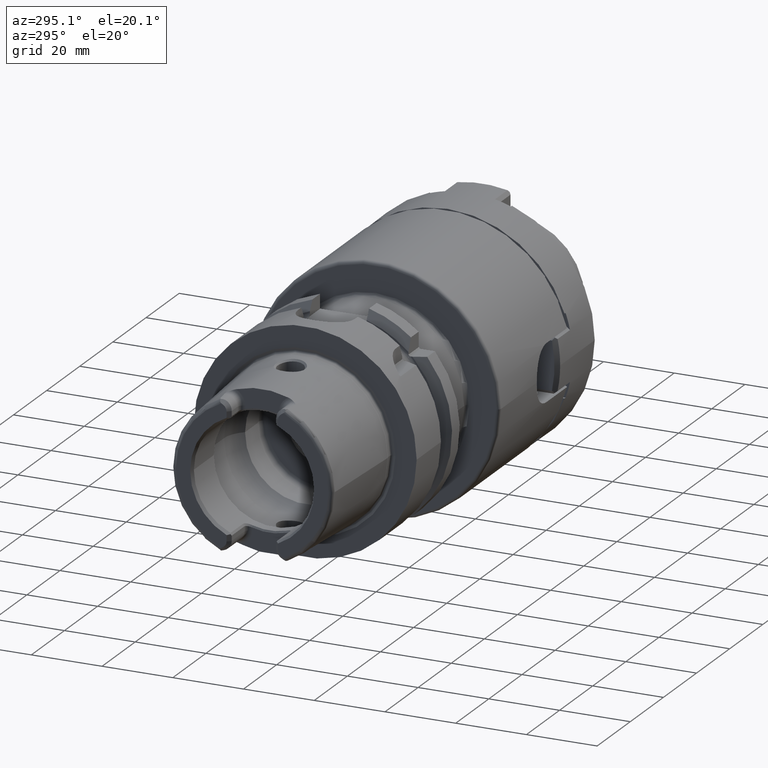
[diagram: clean part render]
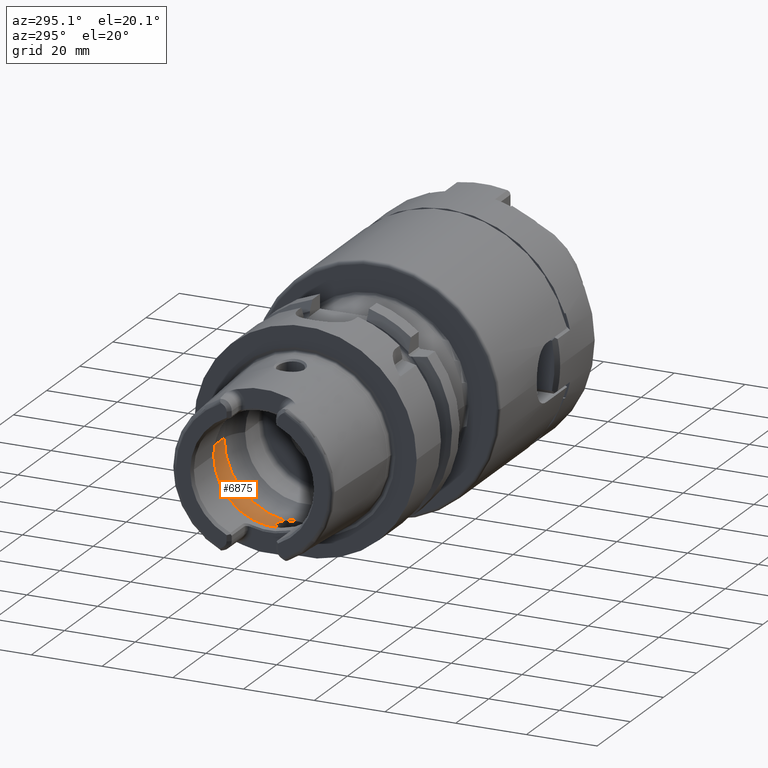
[diagram: same view with one face highlighted and labeled with its STEP entity id]
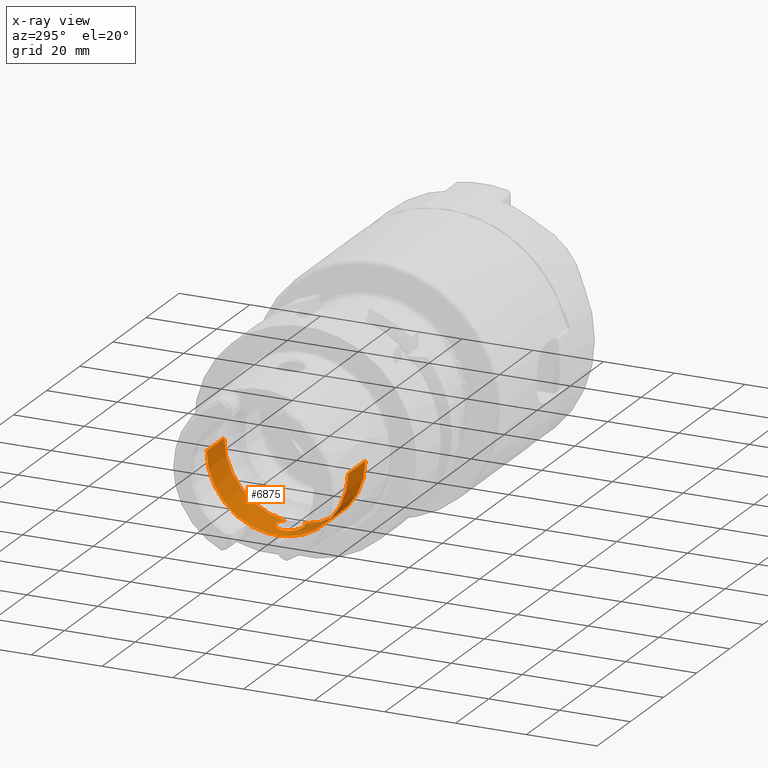
[diagram: x-ray of the same camera — body ghosted, the highlighted face saturated]
A machine part, auxiliary view. The second image highlights one B-rep face of the part: STEP entity #6875.
The next image is the same camera in x-ray: the body ghosted, the highlighted face saturated — about 5% of this face is hidden behind the body in this view.
In plain terms, the highlighted cylindrical surface (partial cylindrical patch) has radius 20 mm, axis along (1, 0, 0).
Its self-contained STEP definition (entity closure, byte-faithful):
#2754=CARTESIAN_POINT('',(-1.275E1,0.E0,-2.E1));
#2755=CARTESIAN_POINT('',(-1.275E1,1.970797777845E-1,-2.E1));
#2756=CARTESIAN_POINT('',(-1.271933909344E1,5.855820587090E-1,
-1.999421722836E1));
#2757=CARTESIAN_POINT('',(-1.258308604776E1,1.156988201512E0,
-1.996912456378E1));
#2758=CARTESIAN_POINT('',(-1.236036877994E1,1.698340885752E0,
-1.993006069771E1));
#2759=CARTESIAN_POINT('',(-1.205588954782E1,2.199795991820E0,
-1.988058916012E1));
#2760=CARTESIAN_POINT('',(-1.167538777807E1,2.649620270025E0,
-1.982521080355E1));
#2761=CARTESIAN_POINT('',(-1.122923157921E1,3.034483606922E0,
-1.976949737947E1));
#2762=CARTESIAN_POINT('',(-1.073042246945E1,3.344039011522E0,
-1.971907966661E1));
#2763=CARTESIAN_POINT('',(-1.018735452757E1,3.573605383178E0,
-1.967844161215E1));
#2764=CARTESIAN_POINT('',(-9.606410769133E0,3.716516435875E0,
-1.965172086194E1));
#2765=CARTESIAN_POINT('',(-9.030535729406E0,3.763361658231E0,
-1.964272645946E1));
#2766=CARTESIAN_POINT('',(-8.506781906634E0,3.728806167728E0,
-1.964936056965E1));
#2767=CARTESIAN_POINT('',(-8.021198772650E0,3.630984566241E0,
-1.966777436361E1));
#2768=CARTESIAN_POINT('',(-7.558768926129E0,3.473542575992E0,
-1.969635625599E1));
#2769=CARTESIAN_POINT('',(-7.115695543339E0,3.254813817759E0,
-1.973391032126E1));
#2770=CARTESIAN_POINT('',(-6.705028812647E0,2.979233365007E0,
-1.977763044789E1));
#2771=CARTESIAN_POINT('',(-6.460595531496E0,2.764184924848E0,
-1.980840609324E1));
#2772=CARTESIAN_POINT('',(-6.344997998398E0,2.648294615690E0,
-1.982388800484E1));
#2774=CARTESIAN_POINT('',(-6.344997998398E0,-2.648294615690E0,
-1.982388800484E1));
#2775=CARTESIAN_POINT('',(-6.462044697935E0,-2.765637761618E0,
-1.980821200720E1));
#2776=CARTESIAN_POINT('',(-6.709671551165E0,-2.983133891878E0,
-1.977705807675E1));
#2777=CARTESIAN_POINT('',(-7.126034905943E0,-3.261089757929E0,
-1.973288133904E1));
#2778=CARTESIAN_POINT('',(-7.575584049692E0,-3.480770468375E0,
-1.969508061270E1));
#2779=CARTESIAN_POINT('',(-8.044905845670E0,-3.637571668188E0,
-1.966655338525E1));
#2780=CARTESIAN_POINT('',(-8.536725270309E0,-3.732857206466E0,
-1.964858692526E1));
#2781=CARTESIAN_POINT('',(-9.064387630539E0,-3.763073563083E0,
-1.964278192788E1));
#2782=CARTESIAN_POINT('',(-9.641487703756E0,-3.710628371547E0,
-1.965284319508E1));
#2783=CARTESIAN_POINT('',(-1.021950864124E1,-3.562603616823E0,
-1.968045141989E1));
#2784=CARTESIAN_POINT('',(-1.075710456701E1,-3.329816746764E0,
-1.972149542356E1));
#2785=CARTESIAN_POINT('',(-1.124928271618E1,-3.019350214938E0,
-1.977181687259E1));
#2786=CARTESIAN_POINT('',(-1.169009647422E1,-2.634399272321E0,
-1.982723525020E1));
#2787=CARTESIAN_POINT('',(-1.206569000544E1,-2.185760381770E0,
-1.988212354227E1));
#2788=CARTESIAN_POINT('',(-1.236610944677E1,-1.686459337541E0,
-1.993104484011E1));
#2789=CARTESIAN_POINT('',(-1.258557429564E1,-1.148507897483E0,
-1.996957873946E1));
#2790=CARTESIAN_POINT('',(-1.271982075329E1,-5.810738531371E-1,
-1.999430846292E1));
#2791=CARTESIAN_POINT('',(-1.275E1,-1.955235226658E-1,-2.E1));
#2792=CARTESIAN_POINT('',(-1.275E1,0.E0,-2.E1));
#2794=CARTESIAN_POINT('',(-6.344997998398E0,0.E0,0.E0));
#2795=DIRECTION('',(-1.E0,0.E0,0.E0));
#2796=DIRECTION('',(0.E0,-1.324147307845E-1,-9.911944002421E-1));
#2797=AXIS2_PLACEMENT_3D('',#2794,#2795,#2796);
#2799=DIRECTION('',(-1.E0,0.E0,0.E0));
#2800=VECTOR('',#2799,1.057256643630E1);
#2801=CARTESIAN_POINT('',(-6.344997998398E0,-2.E1,0.E0));
#2802=LINE('',#2801,#2800);
#2803=DIRECTION('',(-1.E0,0.E0,0.E0));
#2804=VECTOR('',#2803,1.057256643630E1);
#2805=CARTESIAN_POINT('',(-6.344997998398E0,2.E1,0.E0));
#2806=LINE('',#2805,#2804);
#2807=CARTESIAN_POINT('',(-6.344997998398E0,0.E0,0.E0));
#2808=DIRECTION('',(-1.E0,0.E0,0.E0));
#2809=DIRECTION('',(0.E0,1.E0,0.E0));
#2810=AXIS2_PLACEMENT_3D('',#2807,#2808,#2809);
#2812=CARTESIAN_POINT('',(-6.344997998398E0,2.648294615690E0,
-1.982388800484E1));
#2845=CARTESIAN_POINT('',(-6.344997998398E0,-2.648294615690E0,
-1.982388800484E1));
#3028=CARTESIAN_POINT('',(-1.691756443470E1,0.E0,0.E0));
#3029=DIRECTION('',(-1.E0,0.E0,0.E0));
#3030=DIRECTION('',(0.E0,1.E0,0.E0));
#3031=AXIS2_PLACEMENT_3D('',#3028,#3029,#3030);
#3103=CARTESIAN_POINT('',(-6.344997998398E0,2.E1,0.E0));
#3104=VERTEX_POINT('',#3103);
#3105=CARTESIAN_POINT('',(-1.691756443470E1,2.E1,0.E0));
#3106=VERTEX_POINT('',#3105);
#3115=CARTESIAN_POINT('',(-6.344997998398E0,-2.E1,0.E0));
#3116=VERTEX_POINT('',#3115);
#3117=CARTESIAN_POINT('',(-1.691756443470E1,-2.E1,0.E0));
#3118=VERTEX_POINT('',#3117);
#3288=VERTEX_POINT('',#2812);
#3290=VERTEX_POINT('',#2845);
#3291=VERTEX_POINT('',#2754);
#6858=CARTESIAN_POINT('',(-3.41E1,0.E0,0.E0));
#6859=DIRECTION('',(1.E0,0.E0,0.E0));
#6860=DIRECTION('',(0.E0,-1.E0,0.E0));
#6861=AXIS2_PLACEMENT_3D('',#6858,#6859,#6860);
#6862=CYLINDRICAL_SURFACE('',#6861,2.E1);
#6863=ORIENTED_EDGE('',*,*,#6812,.F.);
#6864=ORIENTED_EDGE('',*,*,#6580,.F.);
#6866=ORIENTED_EDGE('',*,*,#6865,.T.);
#6867=ORIENTED_EDGE('',*,*,#6851,.T.);
#6869=ORIENTED_EDGE('',*,*,#6868,.F.);
#6870=ORIENTED_EDGE('',*,*,#6847,.F.);
#6872=ORIENTED_EDGE('',*,*,#6871,.T.);
#6873=EDGE_LOOP('',(#6863,#6864,#6866,#6867,#6869,#6870,#6872));
#6874=FACE_OUTER_BOUND('',#6873,.F.);
#6875=ADVANCED_FACE('',(#6874),#6862,.F.);
#2773=B_SPLINE_CURVE_WITH_KNOTS('',3,(#2754,#2755,#2756,#2757,#2758,#2759,#2760,
#2761,#2762,#2763,#2764,#2765,#2766,#2767,#2768,#2769,#2770,#2771,#2772),
.UNSPECIFIED.,.F.,.F.,(4,1,1,1,1,1,1,1,1,1,1,1,1,1,1,1,4),(0.E0,6.25E-2,1.25E-1,
1.875E-1,2.5E-1,3.125E-1,3.75E-1,4.375E-1,5.E-1,5.625E-1,6.25E-1,6.875E-1,
7.5E-1,8.125E-1,8.75E-1,9.375E-1,1.E0),.UNSPECIFIED.);
#2793=B_SPLINE_CURVE_WITH_KNOTS('',3,(#2774,#2775,#2776,#2777,#2778,#2779,#2780,
#2781,#2782,#2783,#2784,#2785,#2786,#2787,#2788,#2789,#2790,#2791,#2792),
.UNSPECIFIED.,.F.,.F.,(4,1,1,1,1,1,1,1,1,1,1,1,1,1,1,1,4),(0.E0,6.25E-2,1.25E-1,
1.875E-1,2.5E-1,3.125E-1,3.75E-1,4.375E-1,5.E-1,5.625E-1,6.25E-1,6.875E-1,
7.5E-1,8.125E-1,8.75E-1,9.375E-1,1.E0),.UNSPECIFIED.);
#2798=CIRCLE('',#2797,2.E1);
#2811=CIRCLE('',#2810,2.E1);
#3032=CIRCLE('',#3031,2.E1);
#6580=EDGE_CURVE('',#3290,#3291,#2793,.T.);
#6812=EDGE_CURVE('',#3291,#3288,#2773,.T.);
#6847=EDGE_CURVE('',#3104,#3106,#2806,.T.);
#6851=EDGE_CURVE('',#3116,#3118,#2802,.T.);
#6865=EDGE_CURVE('',#3290,#3116,#2798,.T.);
#6868=EDGE_CURVE('',#3106,#3118,#3032,.T.);
#6871=EDGE_CURVE('',#3104,#3288,#2811,.T.);